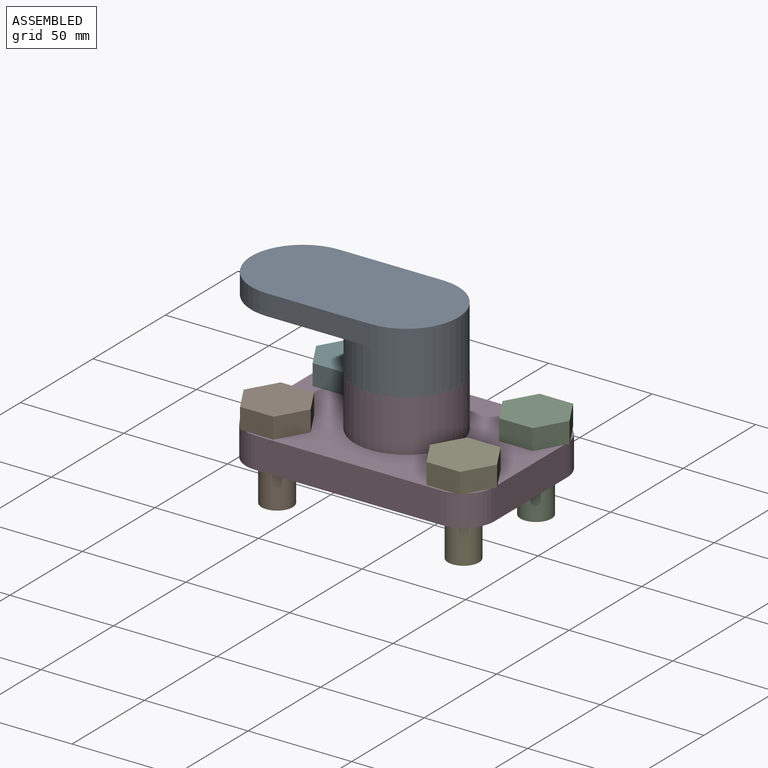
[diagram: assembled view]
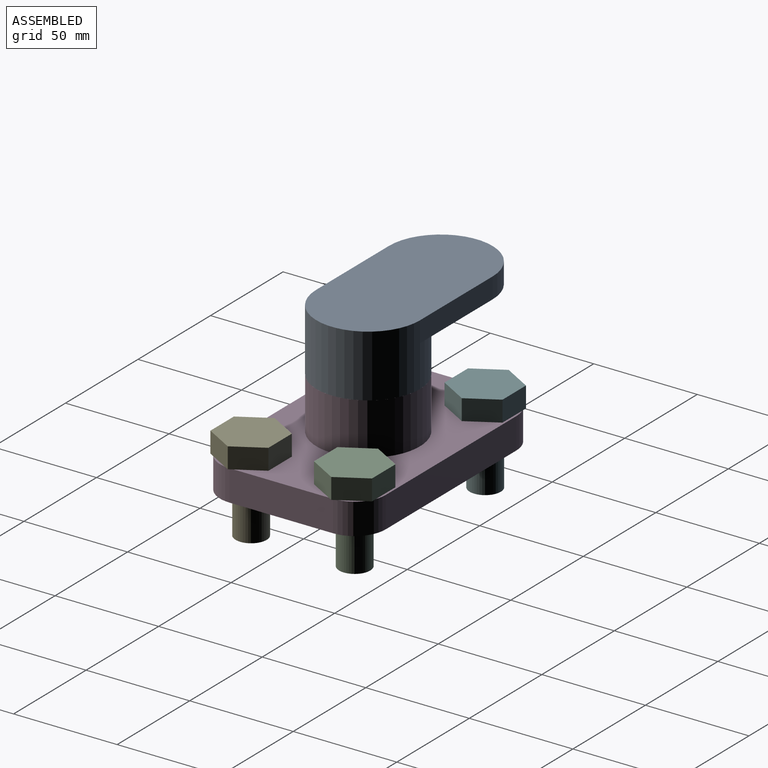
[diagram: assembled view, second angle]
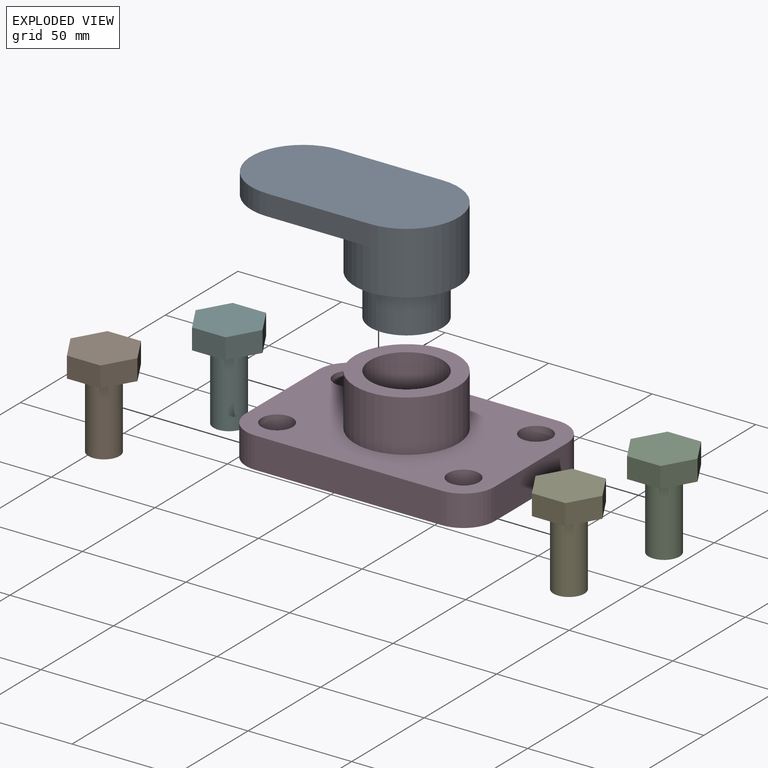
[diagram: exploded view]
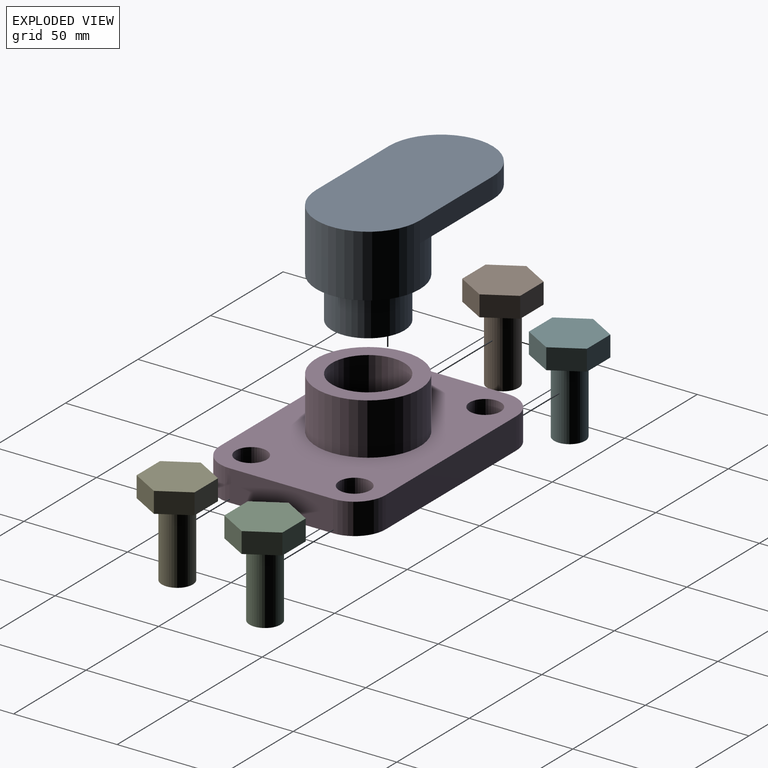
[diagram: exploded view, second angle]
ASSEMBLY  parts=6 mates=10
PART A: 9 faces, bbox 100x50x50 mm
  f0: cylinder r=25mm len=50mm, axis (0,1,0), area 785.4mm2, adj f1,f3,f4,f5
  f1: plane 50x10mm, normal (0,0,-1), area 500mm2, adj f0,f2,f4,f5
  f2: cylinder r=25mm len=50mm, axis (0,1,0), area 3927mm2, adj f1,f3,f4,f5,f6
  f3: plane 50x10mm, normal (0,0,1), area 500mm2, adj f0,f2,f4,f5
  f4: plane 75x50mm, normal (0,-1,0), area 2500mm2, adj f0,f1,f2,f3
  f5: plane 100x50mm, normal (0,1,0), area 4463.5mm2, adj f0,f1,f2,f3
  f6: plane 50x50mm, normal (0,-1,0), area 1001.4mm2, adj f2,f7
  f7: cylinder r=17.5mm len=35mm, axis (0,1,0), area 2199.1mm2, adj f6,f8
  f8: plane 35x35mm, normal (0,-1,0), area 962.1mm2, adj f7
PART B: 10 faces, bbox 32.3x28x45 mm
  f0: plane 16.17x10mm, normal (0,1,0), area 161.7mm2, adj f1,f5,f6,f7
  f1: plane 14x10mm, normal (-0.87,0.5,0), area 161.7mm2, adj f0,f2,f6,f7
  f2: plane 14x10mm, normal (-0.87,-0.5,0), area 161.7mm2, adj f1,f3,f6,f7
  f3: plane 16.17x10mm, normal (0,-1,0), area 161.7mm2, adj f2,f4,f6,f7
  f4: plane 14x10mm, normal (0.87,-0.5,0), area 161.7mm2, adj f3,f5,f6,f7
  f5: plane 14x10mm, normal (0.87,0.5,0), area 161.7mm2, adj f0,f4,f6,f7
  f6: plane 32.33x28mm, normal (0,0,1), area 679mm2, adj f0,f1,f2,f3,f4,f5
  f7: plane 32.33x28mm, normal (0,0,-1), area 502.2mm2, adj f0,f1,f2,f3,f4,f5,f8
  f8: cylinder r=7.5mm len=35mm, axis (0,0,1), area 1649.3mm2, adj f7,f9
  f9: plane 15x15mm, normal (0,0,-1), area 176.7mm2, adj f8
PART C: same geometry as B
PART D: 17 faces, bbox 120x80x40 mm
  f0: plane 50x15mm, normal (1,0,0), area 750mm2, adj f1,f11,f12,f13
  f1: cylinder r=15mm len=15mm, axis (0,0,-1), area 353.4mm2, adj f0,f2,f12,f13
  f2: plane 90x15mm, normal (0,1,0), area 1350mm2, adj f1,f3,f12,f13
  f3: cylinder r=15mm len=15mm, axis (0,0,-1), area 353.4mm2, adj f2,f4,f12,f13
  f4: plane 50x15mm, normal (-1,0,0), area 750mm2, adj f3,f5,f12,f13
  f5: cylinder r=15mm len=15mm, axis (0,0,-1), area 353.4mm2, adj f4,f6,f12,f13
  f6: plane 90x15mm, normal (0,-1,0), area 1350mm2, adj f5,f11,f12,f13
  f7: cylinder r=7.5mm len=15mm, axis (0,0,-1), area 706.9mm2, adj f12,f13
  f8: cylinder r=7.5mm len=15mm, axis (0,0,-1), area 706.9mm2, adj f12,f13
  f9: cylinder r=7.5mm len=15mm, axis (0,0,-1), area 706.9mm2, adj f12,f13
  f10: cylinder r=7.5mm len=15mm, axis (0,0,-1), area 706.9mm2, adj f12,f13
  f11: cylinder r=15mm len=15mm, axis (0,0,-1), area 353.4mm2, adj f0,f6,f12,f13
  f12: plane 120x80mm, normal (0,0,1), area 6736.5mm2, adj f0,f1,f2,f3,f4,f5,f6,f7
  f13: plane 120x80mm, normal (0,0,-1), area 7737.9mm2, adj f0,f1,f2,f3,f4,f5,f6,f7
  f14: cylinder r=17.5mm len=40mm, axis (0,0,-1), area 4398.2mm2, adj f13,f16
  f15: cylinder r=25mm len=50mm, axis (0,0,-1), area 3927mm2, adj f12,f16
  f16: plane 50x50mm, normal (0,0,1), area 1001.4mm2, adj f14,f15
PART E: same geometry as B
PART F: same geometry as B
PLACE A rot(axis=(1,0,0),90deg) t=(-26.73,-2.52,69.36)mm
PLACE B t=(-71.73,-27.52,14.36)mm
PLACE C t=(18.27,22.48,14.36)mm
PLACE D t=(-26.73,-2.52,-0.64)mm fixed
PLACE E t=(18.27,-27.52,14.36)mm
PLACE F t=(-71.73,22.48,14.36)mm
MATE cylindrical F.f8 <-> D.f3  axis (0,0,1) through (-71.73,22.48,-3.14)mm
MATE planar F.f8 <-> D.f12  axis (0,0,-1) through (-71.73,22.48,14.36)mm
MATE cylindrical D.f14 <-> A.f2  axis (0,0,-1) through (-26.73,-2.52,19.36)mm
MATE cylindrical E.f8 <-> D.f10  axis (0,0,1) through (18.27,-27.52,-3.14)mm
MATE cylindrical C.f8 <-> D.f1  axis (0,0,1) through (18.27,22.48,-3.14)mm
MATE planar B.f8 <-> D.f12  axis (0,0,-1) through (-71.73,-27.52,14.36)mm
MATE planar A.f2 <-> D.f15  axis (0,0,-1) through (-26.73,-2.52,39.36)mm
MATE planar C.f8 <-> D.f1  axis (0,0,-1) through (18.27,22.48,14.36)mm
MATE cylindrical B.f8 <-> D.f5  axis (0,0,1) through (-71.73,-27.52,-3.14)mm
MATE planar E.f8 <-> D.f10  axis (0,0,-1) through (18.27,-27.52,14.36)mm
